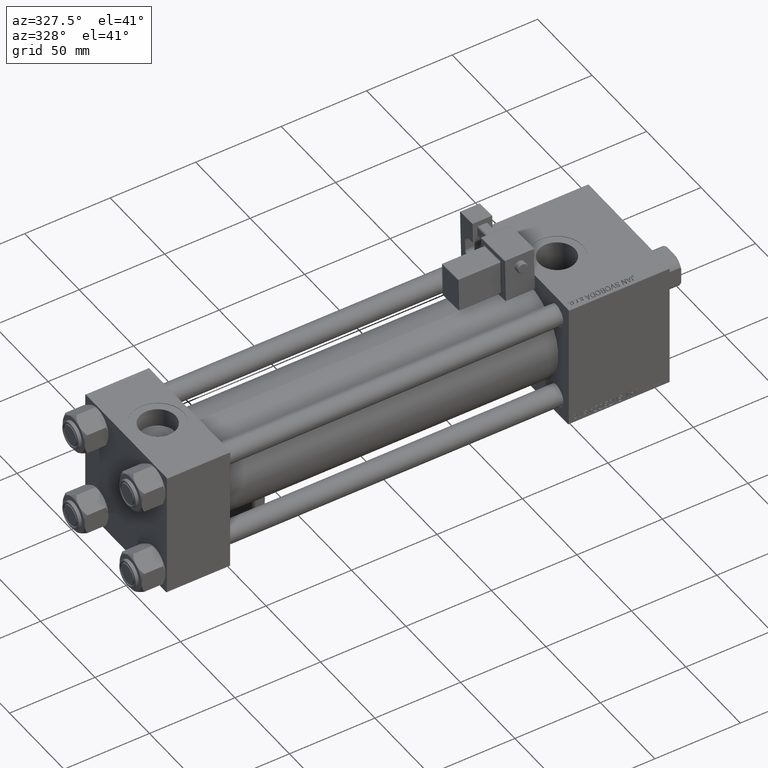
[diagram: clean part render]
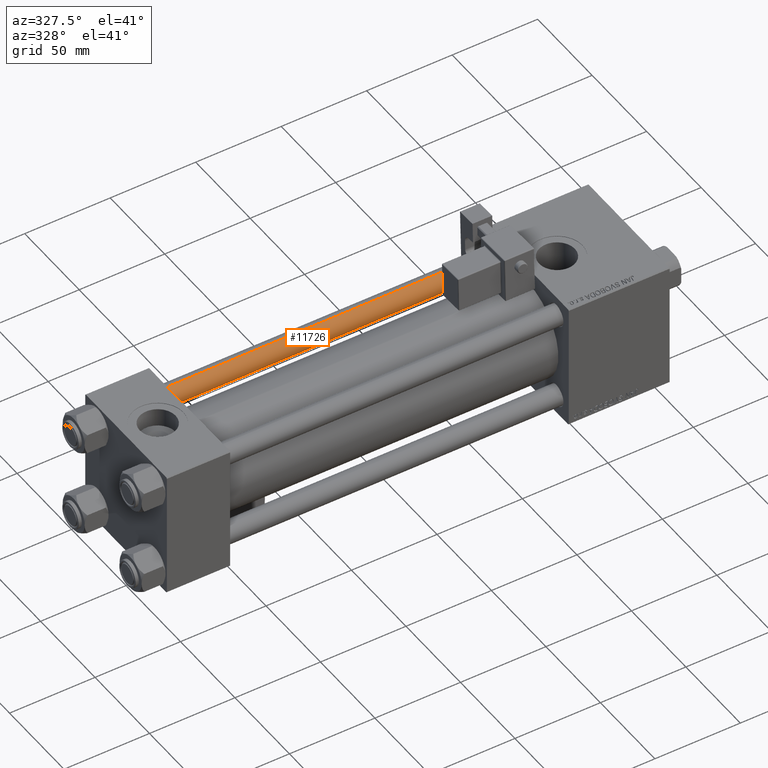
[diagram: same view with one face highlighted and labeled with its STEP entity id]
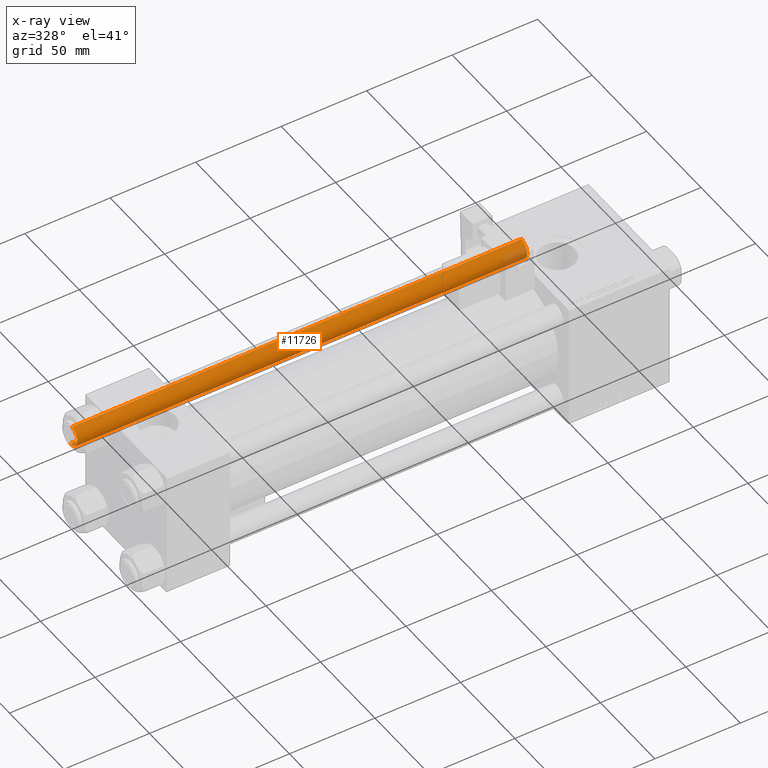
[diagram: x-ray of the same camera — body ghosted, the highlighted face saturated]
A machine part, auxiliary view. The second image highlights one B-rep face of the part: STEP entity #11726.
The next image is the same camera in x-ray: the body ghosted, the highlighted face saturated — about 3% of this face is hidden behind the body in this view.
In plain terms, the highlighted cylindrical surface (edge-blend (fillet) strip) has radius 6 mm, axis along (-1, 0, 0).
Its self-contained STEP definition (entity closure, byte-faithful):
#606 = CARTESIAN_POINT ( 'NONE',  ( 6.000000000000000888, 7.347880794884120722E-16, 264.0000000000000000 ) ) ;
#1263 = VECTOR ( 'NONE', #4320, 1000.000000000000000 ) ;
#3338 = EDGE_CURVE ( 'NONE', #36435, #6865, #47840, .T. ) ;
#3425 = DIRECTION ( 'NONE',  ( -1.000000000000000000, 0.000000000000000000, 0.000000000000000000 ) ) ;
#3458 = EDGE_LOOP ( 'NONE', ( #49607, #31569, #34826, #43770 ) ) ;
#4320 = DIRECTION ( 'NONE',  ( -0.000000000000000000, -0.000000000000000000, -1.000000000000000000 ) ) ;
#5522 = VECTOR ( 'NONE', #17008, 1000.000000000000000 ) ;
#6865 = VERTEX_POINT ( 'NONE', #48702 ) ;
#7248 = DIRECTION ( 'NONE',  ( -0.000000000000000000, -0.000000000000000000, 1.000000000000000000 ) ) ;
#7414 = DIRECTION ( 'NONE',  ( -0.000000000000000000, -0.000000000000000000, -1.000000000000000000 ) ) ;
#8886 = DIRECTION ( 'NONE',  ( 1.000000000000000000, 0.000000000000000000, 0.000000000000000000 ) ) ;
#11726 = ADVANCED_FACE ( 'NONE', ( #15132 ), #36380, .T. ) ;
#15132 = FACE_OUTER_BOUND ( 'NONE', #3458, .T. ) ;
#17008 = DIRECTION ( 'NONE',  ( -0.000000000000000000, -0.000000000000000000, -1.000000000000000000 ) ) ;
#18762 = VERTEX_POINT ( 'NONE', #21716 ) ;
#20278 = LINE ( 'NONE', #606, #1263 ) ;
#21206 = CARTESIAN_POINT ( 'NONE',  ( -6.000000000000000888, 0.000000000000000000, 0.5000000000000559552 ) ) ;
#21716 = CARTESIAN_POINT ( 'NONE',  ( 6.000000000000000888, 7.347880794884120722E-16, 263.5000000000000568 ) ) ;
#22055 = VERTEX_POINT ( 'NONE', #29814 ) ;
#22637 = CARTESIAN_POINT ( 'NONE',  ( 0.000000000000000000, 0.000000000000000000, 263.5000000000000568 ) ) ;
#24961 = AXIS2_PLACEMENT_3D ( 'NONE', #35180, #7248, #27466 ) ;
#27466 = DIRECTION ( 'NONE',  ( 1.000000000000000000, 0.000000000000000000, 0.000000000000000000 ) ) ;
#28052 = EDGE_CURVE ( 'NONE', #18762, #22055, #44238, .T. ) ;
#28711 = CARTESIAN_POINT ( 'NONE',  ( -6.000000000000000888, 0.000000000000000000, 264.0000000000000000 ) ) ;
#29814 = CARTESIAN_POINT ( 'NONE',  ( -6.000000000000000888, 0.000000000000000000, 263.5000000000000568 ) ) ;
#31569 = ORIENTED_EDGE ( 'NONE', *, *, #28052, .T. ) ;
#34826 = ORIENTED_EDGE ( 'NONE', *, *, #40774, .T. ) ;
#35180 = CARTESIAN_POINT ( 'NONE',  ( 0.000000000000000000, 0.000000000000000000, 0.5000000000000559552 ) ) ;
#35480 = AXIS2_PLACEMENT_3D ( 'NONE', #47304, #7414, #3425 ) ;
#35740 = AXIS2_PLACEMENT_3D ( 'NONE', #22637, #45826, #8886 ) ;
#36380 = CYLINDRICAL_SURFACE ( 'NONE', #35480, 6.000000000000000888 ) ;
#36435 = VERTEX_POINT ( 'NONE', #21206 ) ;
#37228 = LINE ( 'NONE', #28711, #5522 ) ;
#40774 = EDGE_CURVE ( 'NONE', #22055, #36435, #37228, .T. ) ;
#43293 = EDGE_CURVE ( 'NONE', #18762, #6865, #20278, .T. ) ;
#43770 = ORIENTED_EDGE ( 'NONE', *, *, #3338, .T. ) ;
#44238 = CIRCLE ( 'NONE', #35740, 6.000000000000000888 ) ;
#45826 = DIRECTION ( 'NONE',  ( 0.000000000000000000, 0.000000000000000000, -1.000000000000000000 ) ) ;
#47304 = CARTESIAN_POINT ( 'NONE',  ( 0.000000000000000000, 0.000000000000000000, 264.0000000000000000 ) ) ;
#47840 = CIRCLE ( 'NONE', #24961, 6.000000000000000888 ) ;
#48702 = CARTESIAN_POINT ( 'NONE',  ( 6.000000000000000888, 7.347880794884120722E-16, 0.5000000000000559552 ) ) ;
#49607 = ORIENTED_EDGE ( 'NONE', *, *, #43293, .F. ) ;